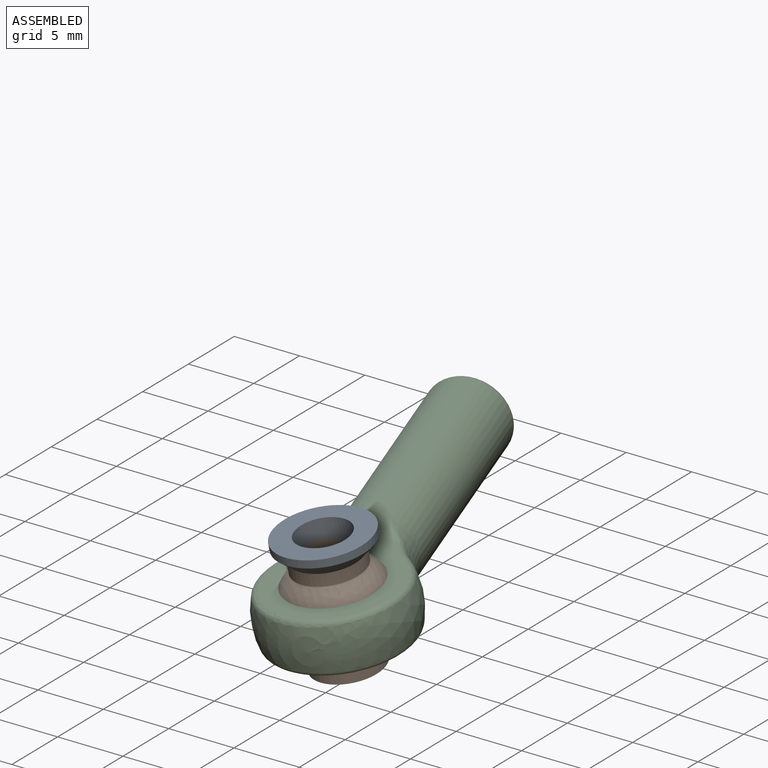
[diagram: assembled view]
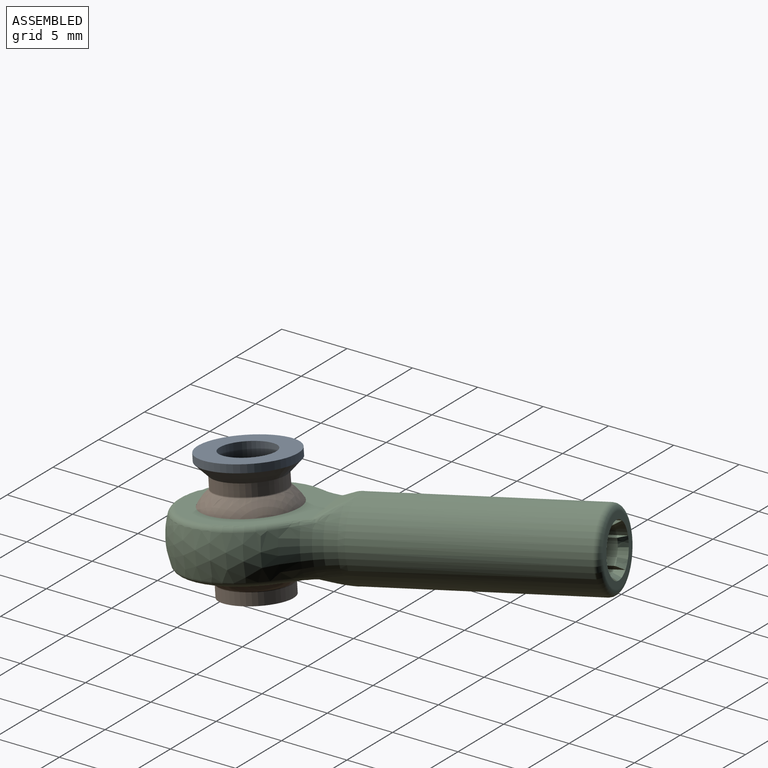
[diagram: assembled view, second angle]
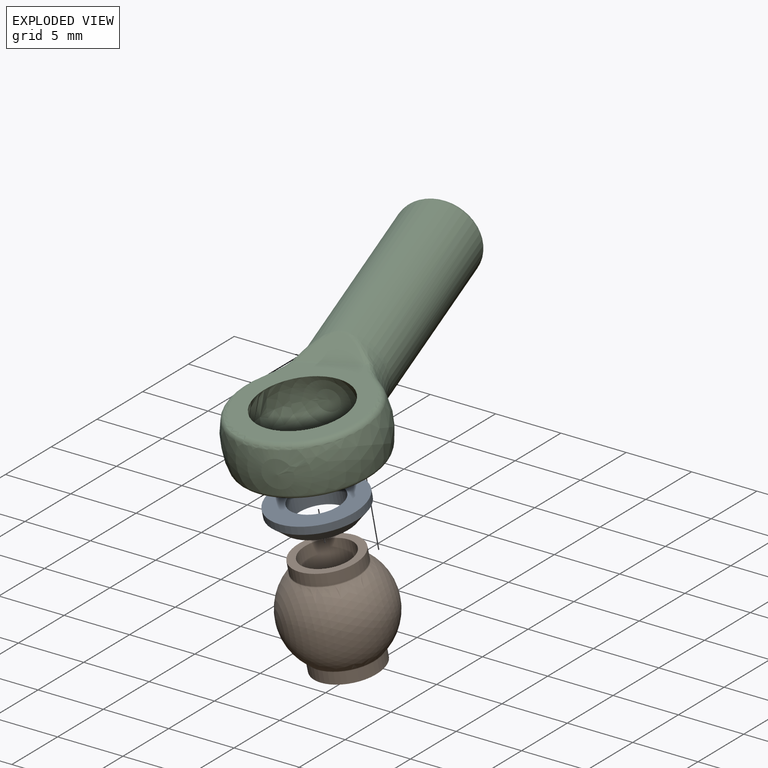
[diagram: exploded view]
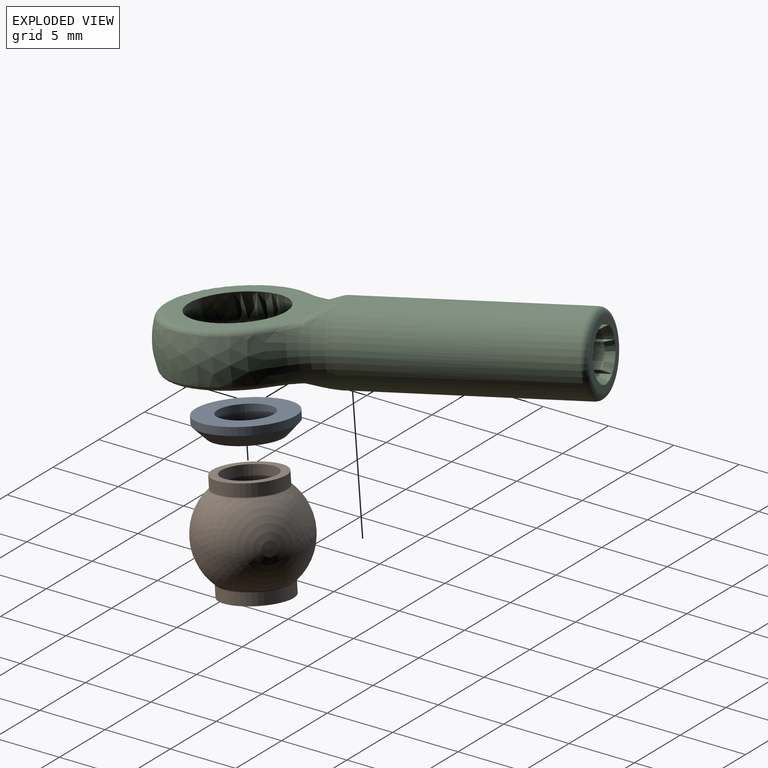
[diagram: exploded view, second angle]
ASSEMBLY  parts=3 mates=2
PART A: 5 faces, bbox 7x7x1.5 mm
  f0: cylinder r=3.5mm len=7mm, axis (0,0,-1), area 12.9mm2, adj f1,f3
  f1: cone r=3.5mm half-angle=45deg, axis (0,0,-1), area 24.7mm2, adj f0,f4
  f2: cylinder r=1.98mm len=3.95mm, axis (0,0,-1), area 18.6mm2, adj f3,f4
  f3: plane 7x7mm, normal (0,0,-1), area 26.2mm2, adj f0,f2
  f4: plane 5.17x5.17mm, normal (0,0,1), area 8.7mm2, adj f1,f2
PART B: 8 faces, bbox 8x8x8 mm
  f0: torus R=2.69mm, axis (0,0,1), area 1.4mm2, adj f3,f4
  f1: torus R=2.69mm, axis (0,0,-1), area 1.4mm2, adj f2,f4
  f2: cylinder r=2.58mm len=5.17mm, axis (0,0,-1), area 14.6mm2, adj f1,f6
  f3: cylinder r=2.58mm len=5.17mm, axis (0,0,-1), area 14.6mm2, adj f0,f7
  f4: sphere r=4mm, area 152mm2, adj f0,f1
  f5: cylinder r=1.98mm len=8mm, axis (0,0,-1), area 99.3mm2, adj f6,f7
  f6: plane 5.17x5.17mm, normal (0,0,1), area 8.7mm2, adj f2,f5
  f7: plane 5.17x5.17mm, normal (0,0,-1), area 8.7mm2, adj f3,f5
PART C: 72 faces, bbox 11.4x30.2x11 mm
  f0: torus R=2.5mm, axis (0,1,0), area 13.9mm2, adj f9,f10
  f1: torus R=4.77mm, axis (0,0,-1), area 14.5mm2, adj f7,f19,f70,f71
  f2: bspline ~0.69x0.35mm, area 0.1mm2, adj f9,f53,f64,f65
  f3: torus R=4.77mm, axis (0,0,1), area 14.5mm2, adj f7,f18,f62,f63
  f4: bspline ~0.69x0.35mm, area 0.1mm2, adj f9,f52,f56,f57
  f5: cone r=1.95mm half-angle=30deg, axis (0,1,0), area 0.5mm2, adj f8,f10,f34,f36
  f6: sphere r=4mm, area 100.5mm2, adj f18,f19
  f7: sphere r=5.5mm, area 83.5mm2, adj f1,f3,f54,f55
  f8: cylinder r=1.6mm len=15.89mm, axis (0,1,0), area 10mm2, adj f5,f20,f34,f36
  f9: cylinder r=3mm len=16.67mm, axis (0,1,0), area 314mm2, adj f0,f2,f4,f54,f55,f56,f64
  f10: plane 5x5mm, normal (0,1,0), area 7.7mm2, adj f0,f5,f23,f26,f29,f32,f35,f38
  f11: cylinder r=1.6mm len=15.89mm, axis (0,1,0), area 10mm2, adj f20,f40,f42,f46
  f12: cylinder r=1.6mm len=15.89mm, axis (0,1,0), area 10mm2, adj f20,f37,f39,f47
  f13: cylinder r=1.6mm len=15.89mm, axis (0,1,0), area 10mm2, adj f20,f31,f33,f48
  f14: cylinder r=1.6mm len=15.89mm, axis (0,1,0), area 10mm2, adj f20,f28,f30,f49
  f15: cylinder r=1.6mm len=15.89mm, axis (0,1,0), area 10mm2, adj f20,f25,f27,f50
  f16: cylinder r=1.6mm len=15.89mm, axis (0,1,0), area 10mm2, adj f20,f22,f24,f51
  f17: cylinder r=1.6mm len=15.89mm, axis (0,1,0), area 10mm2, adj f20,f21,f43,f45
  f18: plane 9.79x9.54mm, normal (0,0,-1), area 36.8mm2, adj f3,f6,f58,f62,f63
  f19: plane 9.79x9.54mm, normal (0,0,1), area 36.8mm2, adj f1,f6,f67,f70,f71
  f20: plane 3.83x3.83mm, normal (0,1,0), area 10mm2, adj f8,f11,f12,f13,f14,f15,f16,f17
  f21: plane 16.5x0.29mm, normal (-0.83,0,-0.56), area 5.7mm2, adj f17,f20,f23,f45
  f22: plane 16.5x0.34mm, normal (0.98,0,0.2), area 5.7mm2, adj f16,f20,f23,f51
  f23: cylinder r=1.95mm len=16.5mm, axis (0,1,0), area 12.6mm2, adj f10,f20,f21,f22
  f24: plane 16.5x0.34mm, normal (-0.98,0,0.2), area 5.7mm2, adj f16,f20,f26,f51
  f25: plane 16.5x0.29mm, normal (0.83,0,-0.56), area 5.7mm2, adj f15,f20,f26,f50
  f26: cylinder r=1.95mm len=16.5mm, axis (0,1,0), area 12.6mm2, adj f10,f20,f24,f25
  f27: plane 16.5x0.29mm, normal (-0.56,0,0.83), area 5.7mm2, adj f15,f20,f29,f50
  f28: plane 16.5x0.34mm, normal (0.2,0,-0.98), area 5.7mm2, adj f14,f20,f29,f49
  f29: cylinder r=1.95mm len=16.5mm, axis (0,1,0), area 12.6mm2, adj f10,f20,f27,f28
  f30: plane 16.5x0.34mm, normal (0.2,0,0.98), area 5.7mm2, adj f14,f20,f32,f49
  f31: plane 16.5x0.29mm, normal (-0.56,0,-0.83), area 5.7mm2, adj f13,f20,f32,f48
  f32: cylinder r=1.95mm len=16.5mm, axis (0,1,0), area 12.6mm2, adj f10,f20,f30,f31
  f33: plane 16.5x0.29mm, normal (0.83,0,0.56), area 5.7mm2, adj f13,f20,f35,f48
  f34: plane 16.5x0.34mm, normal (-0.98,0,-0.2), area 5.7mm2, adj f5,f8,f20,f35
  f35: cylinder r=1.95mm len=16.5mm, axis (0,1,0), area 12.6mm2, adj f10,f20,f33,f34
  f36: plane 16.5x0.34mm, normal (0.98,0,-0.2), area 5.7mm2, adj f5,f8,f20,f38
  f37: plane 16.5x0.29mm, normal (-0.83,0,0.56), area 5.7mm2, adj f12,f20,f38,f47
  f38: cylinder r=1.95mm len=16.5mm, axis (0,1,0), area 12.6mm2, adj f10,f20,f36,f37
  f39: plane 16.5x0.29mm, normal (0.56,0,-0.83), area 5.7mm2, adj f12,f20,f41,f47
  f40: plane 16.5x0.34mm, normal (-0.2,0,0.98), area 5.7mm2, adj f11,f20,f41,f46
  f41: cylinder r=1.95mm len=16.5mm, axis (0,1,0), area 12.6mm2, adj f10,f20,f39,f40
  f42: plane 16.5x0.34mm, normal (-0.2,0,-0.98), area 5.7mm2, adj f11,f20,f44,f46
  f43: plane 16.5x0.29mm, normal (0.56,0,0.83), area 5.7mm2, adj f17,f20,f44,f45
  f44: cylinder r=1.95mm len=16.5mm, axis (0,1,0), area 12.6mm2, adj f10,f20,f42,f43
  f45: cone r=1.95mm half-angle=30deg, axis (0,1,0), area 0.5mm2, adj f10,f17,f21,f43
  f46: cone r=1.95mm half-angle=30deg, axis (0,1,0), area 0.5mm2, adj f10,f11,f40,f42
  f47: cone r=1.95mm half-angle=30deg, axis (0,1,0), area 0.5mm2, adj f10,f12,f37,f39
  f48: cone r=1.95mm half-angle=30deg, axis (0,1,0), area 0.5mm2, adj f10,f13,f31,f33
  f49: cone r=1.95mm half-angle=30deg, axis (0,1,0), area 0.5mm2, adj f10,f14,f28,f30
  f50: cone r=1.95mm half-angle=30deg, axis (0,1,0), area 0.5mm2, adj f10,f15,f25,f27
  f51: cone r=1.95mm half-angle=30deg, axis (0,1,0), area 0.5mm2, adj f10,f16,f22,f24
  f52: plane 4.53x2.06mm, normal (0,-0.41,-0.91), area 6.6mm2, adj f4,f56,f57,f58,f59
  f53: plane 4.53x2.06mm, normal (0,-0.41,0.91), area 6.6mm2, adj f2,f64,f65,f66,f67
  f54: torus R=9.5mm, axis (0,-1,0), area 19.6mm2, adj f7,f9,f59,f61,f63,f66,f69,f71
  f55: torus R=9.5mm, axis (0,-1,0), area 19.6mm2, adj f7,f9,f57,f60,f62,f65,f68,f70
  f56: bspline ~0.69x0.35mm, area 0.1mm2, adj f4,f9,f52,f59
  f57: bspline ~2.11x2.09mm, area 1.1mm2, adj f4,f52,f55,f60
  f58: cylinder r=0.5mm len=4.95mm, axis (-1,0,0), area 1mm2, adj f18,f52,f60,f61
  f59: bspline ~2.11x2.09mm, area 1.1mm2, adj f52,f54,f56,f61
  f60: bspline ~0.61x0.54mm, area 0.2mm2, adj f55,f57,f58,f62
  f61: bspline ~0.61x0.54mm, area 0.2mm2, adj f54,f58,f59,f63
  f62: bspline ~2.13x1.56mm, area 1.3mm2, adj f3,f18,f55,f60
  f63: bspline ~2.13x1.56mm, area 1.3mm2, adj f3,f18,f54,f61
  f64: bspline ~0.69x0.35mm, area 0.1mm2, adj f2,f9,f53,f66
  f65: bspline ~2.11x2.09mm, area 1.1mm2, adj f2,f53,f55,f68
  f66: bspline ~2.11x2.09mm, area 1.1mm2, adj f53,f54,f64,f69
  f67: cylinder r=0.5mm len=4.95mm, axis (1,0,0), area 1mm2, adj f19,f53,f68,f69
  f68: bspline ~0.61x0.54mm, area 0.2mm2, adj f55,f65,f67,f70
  f69: bspline ~0.61x0.54mm, area 0.2mm2, adj f54,f66,f67,f71
  f70: bspline ~2.13x1.56mm, area 1.3mm2, adj f1,f19,f55,f68
  f71: bspline ~2.13x1.56mm, area 1.3mm2, adj f1,f19,f54,f69
PLACE A rot(axis=(0.33,0.94,0.09),177.1deg) t=(-31.04,-3.8,27.45)mm
PLACE B rot(axis=(0.25,-0.07,-0.97),40.5deg) t=(-30.46,-3.01,22.03)mm
PLACE C rot(axis=(0.42,-0.34,0.84),17.3deg) t=(-30.46,-3.01,22.03)mm fixed
MATE fastened B.f0 <-> A.f0  axis (-0.1,-0.14,0.98) through (-30.88,-3.59,25.97)mm
MATE ball C.f1 <-> B.f0  axis (-0.08,-0.14,0.99) through (-30.46,-3.01,22.03)mm
